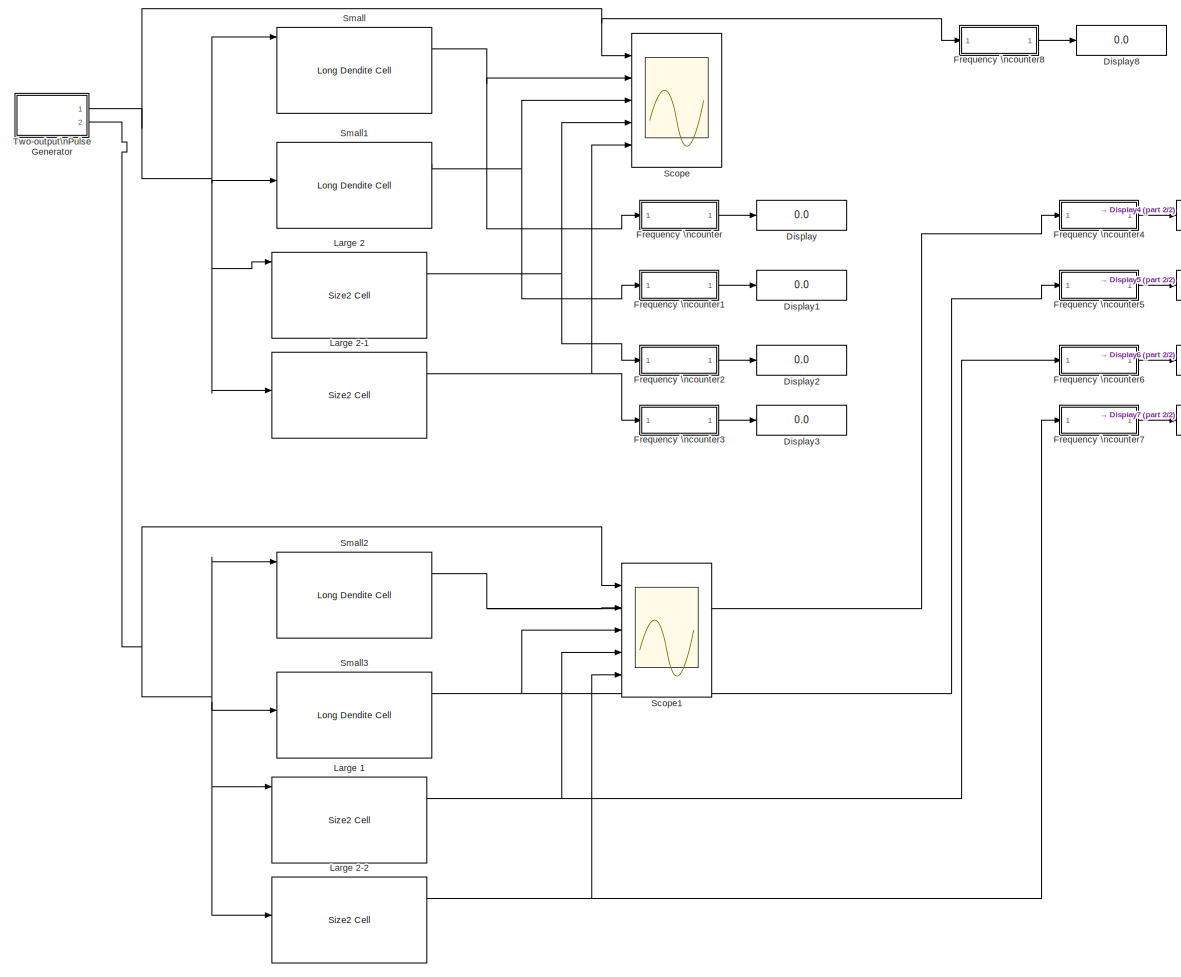
[diagram: root canvas - part 1/2, most of the canvas]
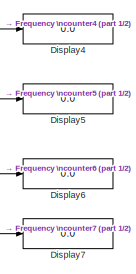
[diagram: root canvas - part 2/2, middle right region]
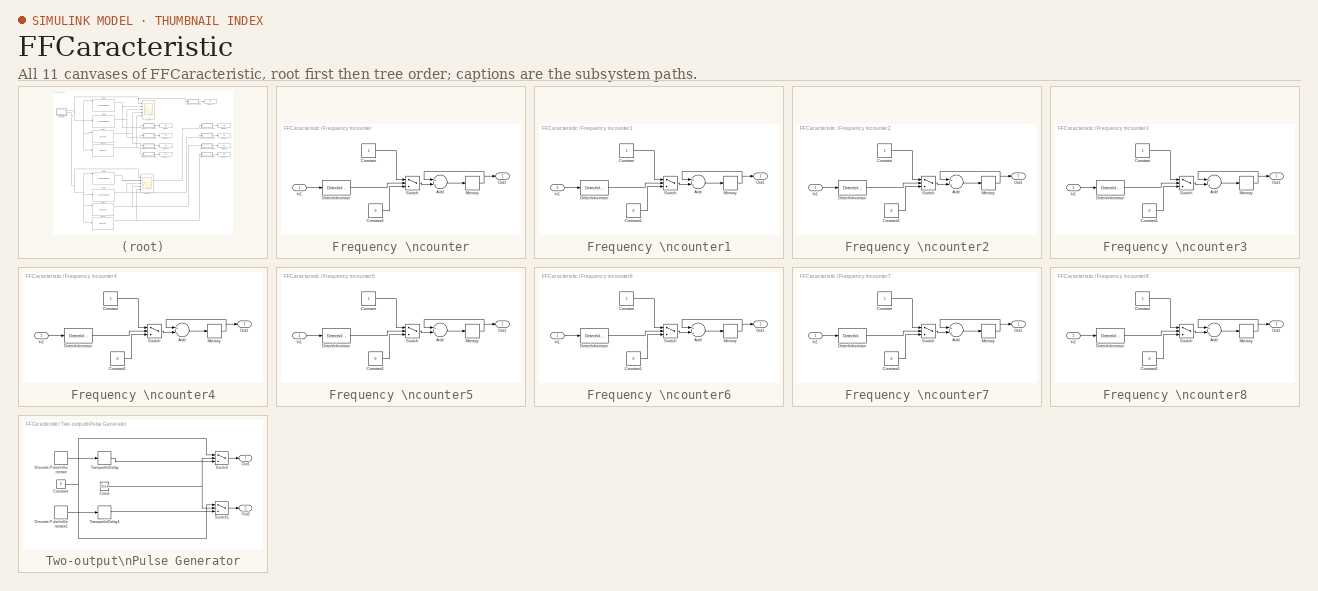
[diagram: thumbnail index - all 11 canvases of the model, root first then tree order]
MODEL FFCaracteristic
KIND model
BLOCK [Display] Display
  Decimation = 1
  Lockdown = off
  Ports = [1]
  SID = 1
BLOCK [Display] Display1
  Decimation = 1
  Lockdown = off
  Ports = [1]
  SID = 2
BLOCK [Display] Display2
  Decimation = 1
  Lockdown = off
  Ports = [1]
  SID = 3
BLOCK [Display] Display3
  Decimation = 1
  Lockdown = off
  Ports = [1]
  SID = 4
BLOCK [Display] Display4
  Decimation = 1
  Lockdown = off
  Ports = [1]
  SID = 309
BLOCK [Display] Display5
  Decimation = 1
  Lockdown = off
  Ports = [1]
  SID = 310
BLOCK [Display] Display6
  Decimation = 1
  Lockdown = off
  Ports = [1]
  SID = 311
BLOCK [Display] Display7
  Decimation = 1
  Lockdown = off
  Ports = [1]
  SID = 312
BLOCK [Display] Display8
  Decimation = 1
  Lockdown = off
  Ports = [1]
  SID = 354
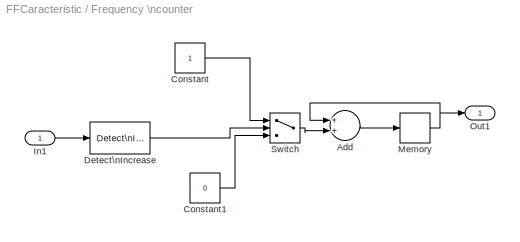
BLOCK [SubSystem] Frequency \ncounter
  FunctionWithSeparateData = off
  MaskHideContents = off
  MinAlgLoopOccurrences = off
  Opaque = off
  Ports = [1, 1]
  PropExecContextOutsideSubsystem = off
  RTWSystemCode = Auto
  RequestExecContextInheritance = off
  SID = 5
BLOCK [Sum] Frequency \ncounter/Add
  InputSameDT = off
  OutDataType = fixdt(1, 16)
  OutDataTypeMode = Inherit via internal rule
  OutDataTypeStr = Inherit: Inherit via internal rule
  OutScaling = 2^-10
  Ports = [2, 1]
  SID = 7
  SaturateOnIntegerOverflow = off
BLOCK [Constant] Frequency \ncounter/Constant
  OutDataType = fixdt(1, 16)
  OutScaling = 2^0
  SID = 8
BLOCK [Constant] Frequency \ncounter/Constant1
  OutDataType = fixdt(1, 16)
  OutScaling = 2^0
  SID = 9
  Value = 0
BLOCK [Reference] Frequency \ncounter/Detect\nIncrease  REF=simulink/Logic and Bit\nOperations/Detect\nIncrease
  FunctionWithSeparateData = off
  Ports = [1, 1]
  RTWMemSecDataConstants = Inherit from model
  RTWMemSecDataInternal = Inherit from model
  RTWMemSecDataParameters = Inherit from model
  RTWMemSecFuncExecute = Inherit from model
  RTWMemSecFuncInitTerm = Inherit from model
  SID = 10
  ShowPortLabels = FromPortIcon
  SourceBlock = simulink/Logic and Bit\nOperations/Detect\nIncrease
  SourceType = Detect Increase
  SystemSampleTime = -1
  vinit = 0.0
BLOCK [Inport] Frequency \ncounter/In1
  IconDisplay = Port number
  SID = 6
BLOCK [Memory] Frequency \ncounter/Memory
  SID = 11
BLOCK [Outport] Frequency \ncounter/Out1
  IconDisplay = Port number
  SID = 13
BLOCK [Switch] Frequency \ncounter/Switch
  Criteria = u2 > Threshold
  InputSameDT = off
  OutDataType = fixdt(1, 16)
  OutScaling = 2^0
  SID = 12
  SaturateOnIntegerOverflow = off
BLOCK [SubSystem] Frequency \ncounter1
  FunctionWithSeparateData = off
  MaskHideContents = off
  MinAlgLoopOccurrences = off
  Opaque = off
  Ports = [1, 1]
  PropExecContextOutsideSubsystem = off
  RTWSystemCode = Auto
  RequestExecContextInheritance = off
  SID = 14
BLOCK [Sum] Frequency \ncounter1/Add
  InputSameDT = off
  OutDataType = fixdt(1, 16)
  OutDataTypeMode = Inherit via internal rule
  OutDataTypeStr = Inherit: Inherit via internal rule
  OutScaling = 2^-10
  Ports = [2, 1]
  SID = 16
  SaturateOnIntegerOverflow = off
BLOCK [Constant] Frequency \ncounter1/Constant
  OutDataType = fixdt(1, 16)
  OutScaling = 2^0
  SID = 17
BLOCK [Constant] Frequency \ncounter1/Constant1
  OutDataType = fixdt(1, 16)
  OutScaling = 2^0
  SID = 18
  Value = 0
BLOCK [Reference] Frequency \ncounter1/Detect\nIncrease  REF=simulink/Logic and Bit\nOperations/Detect\nIncrease
  FunctionWithSeparateData = off
  Ports = [1, 1]
  RTWMemSecDataConstants = Inherit from model
  RTWMemSecDataInternal = Inherit from model
  RTWMemSecDataParameters = Inherit from model
  RTWMemSecFuncExecute = Inherit from model
  RTWMemSecFuncInitTerm = Inherit from model
  SID = 19
  ShowPortLabels = FromPortIcon
  SourceBlock = simulink/Logic and Bit\nOperations/Detect\nIncrease
  SourceType = Detect Increase
  SystemSampleTime = -1
  vinit = 0.0
BLOCK [Inport] Frequency \ncounter1/In1
  IconDisplay = Port number
  SID = 15
BLOCK [Memory] Frequency \ncounter1/Memory
  SID = 20
BLOCK [Outport] Frequency \ncounter1/Out1
  IconDisplay = Port number
  SID = 22
BLOCK [Switch] Frequency \ncounter1/Switch
  Criteria = u2 > Threshold
  InputSameDT = off
  OutDataType = fixdt(1, 16)
  OutScaling = 2^0
  SID = 21
  SaturateOnIntegerOverflow = off
BLOCK [SubSystem] Frequency \ncounter2
  FunctionWithSeparateData = off
  MaskHideContents = off
  MinAlgLoopOccurrences = off
  Opaque = off
  Ports = [1, 1]
  PropExecContextOutsideSubsystem = off
  RTWSystemCode = Auto
  RequestExecContextInheritance = off
  SID = 23
BLOCK [Sum] Frequency \ncounter2/Add
  InputSameDT = off
  OutDataType = fixdt(1, 16)
  OutDataTypeMode = Inherit via internal rule
  OutDataTypeStr = Inherit: Inherit via internal rule
  OutScaling = 2^-10
  Ports = [2, 1]
  SID = 25
  SaturateOnIntegerOverflow = off
BLOCK [Constant] Frequency \ncounter2/Constant
  OutDataType = fixdt(1, 16)
  OutScaling = 2^0
  SID = 26
BLOCK [Constant] Frequency \ncounter2/Constant1
  OutDataType = fixdt(1, 16)
  OutScaling = 2^0
  SID = 27
  Value = 0
BLOCK [Reference] Frequency \ncounter2/Detect\nIncrease  REF=simulink/Logic and Bit\nOperations/Detect\nIncrease
  FunctionWithSeparateData = off
  Ports = [1, 1]
  RTWMemSecDataConstants = Inherit from model
  RTWMemSecDataInternal = Inherit from model
  RTWMemSecDataParameters = Inherit from model
  RTWMemSecFuncExecute = Inherit from model
  RTWMemSecFuncInitTerm = Inherit from model
  SID = 28
  ShowPortLabels = FromPortIcon
  SourceBlock = simulink/Logic and Bit\nOperations/Detect\nIncrease
  SourceType = Detect Increase
  SystemSampleTime = -1
  vinit = 0.0
BLOCK [Inport] Frequency \ncounter2/In1
  IconDisplay = Port number
  SID = 24
BLOCK [Memory] Frequency \ncounter2/Memory
  SID = 29
BLOCK [Outport] Frequency \ncounter2/Out1
  IconDisplay = Port number
  SID = 31
BLOCK [Switch] Frequency \ncounter2/Switch
  Criteria = u2 > Threshold
  InputSameDT = off
  OutDataType = fixdt(1, 16)
  OutScaling = 2^0
  SID = 30
  SaturateOnIntegerOverflow = off
BLOCK [SubSystem] Frequency \ncounter3
  FunctionWithSeparateData = off
  MaskHideContents = off
  MinAlgLoopOccurrences = off
  Opaque = off
  Ports = [1, 1]
  PropExecContextOutsideSubsystem = off
  RTWSystemCode = Auto
  RequestExecContextInheritance = off
  SID = 32
BLOCK [Sum] Frequency \ncounter3/Add
  InputSameDT = off
  OutDataType = fixdt(1, 16)
  OutDataTypeMode = Inherit via internal rule
  OutDataTypeStr = Inherit: Inherit via internal rule
  OutScaling = 2^-10
  Ports = [2, 1]
  SID = 34
  SaturateOnIntegerOverflow = off
BLOCK [Constant] Frequency \ncounter3/Constant
  OutDataType = fixdt(1, 16)
  OutScaling = 2^0
  SID = 35
BLOCK [Constant] Frequency \ncounter3/Constant1
  OutDataType = fixdt(1, 16)
  OutScaling = 2^0
  SID = 36
  Value = 0
BLOCK [Reference] Frequency \ncounter3/Detect\nIncrease  REF=simulink/Logic and Bit\nOperations/Detect\nIncrease
  FunctionWithSeparateData = off
  Ports = [1, 1]
  RTWMemSecDataConstants = Inherit from model
  RTWMemSecDataInternal = Inherit from model
  RTWMemSecDataParameters = Inherit from model
  RTWMemSecFuncExecute = Inherit from model
  RTWMemSecFuncInitTerm = Inherit from model
  SID = 37
  ShowPortLabels = FromPortIcon
  SourceBlock = simulink/Logic and Bit\nOperations/Detect\nIncrease
  SourceType = Detect Increase
  SystemSampleTime = -1
  vinit = 0.0
BLOCK [Inport] Frequency \ncounter3/In1
  IconDisplay = Port number
  SID = 33
BLOCK [Memory] Frequency \ncounter3/Memory
  SID = 38
BLOCK [Outport] Frequency \ncounter3/Out1
  IconDisplay = Port number
  SID = 40
BLOCK [Switch] Frequency \ncounter3/Switch
  Criteria = u2 > Threshold
  InputSameDT = off
  OutDataType = fixdt(1, 16)
  OutScaling = 2^0
  SID = 39
  SaturateOnIntegerOverflow = off
BLOCK [SubSystem] Frequency \ncounter4
  FunctionWithSeparateData = off
  MaskHideContents = off
  MinAlgLoopOccurrences = off
  Opaque = off
  Ports = [1, 1]
  PropExecContextOutsideSubsystem = off
  RTWSystemCode = Auto
  RequestExecContextInheritance = off
  SID = 313
BLOCK [Sum] Frequency \ncounter4/Add
  InputSameDT = off
  OutDataType = fixdt(1, 16)
  OutDataTypeMode = Inherit via internal rule
  OutDataTypeStr = Inherit: Inherit via internal rule
  OutScaling = 2^-10
  Ports = [2, 1]
  SID = 315
  SaturateOnIntegerOverflow = off
BLOCK [Constant] Frequency \ncounter4/Constant
  OutDataType = fixdt(1, 16)
  OutScaling = 2^0
  SID = 316
BLOCK [Constant] Frequency \ncounter4/Constant1
  OutDataType = fixdt(1, 16)
  OutScaling = 2^0
  SID = 317
  Value = 0
BLOCK [Reference] Frequency \ncounter4/Detect\nIncrease  REF=simulink/Logic and Bit\nOperations/Detect\nIncrease
  FunctionWithSeparateData = off
  Ports = [1, 1]
  RTWMemSecDataConstants = Inherit from model
  RTWMemSecDataInternal = Inherit from model
  RTWMemSecDataParameters = Inherit from model
  RTWMemSecFuncExecute = Inherit from model
  RTWMemSecFuncInitTerm = Inherit from model
  SID = 318
  ShowPortLabels = FromPortIcon
  SourceBlock = simulink/Logic and Bit\nOperations/Detect\nIncrease
  SourceType = Detect Increase
  SystemSampleTime = -1
  vinit = 0.0
BLOCK [Inport] Frequency \ncounter4/In1
  IconDisplay = Port number
  SID = 314
BLOCK [Memory] Frequency \ncounter4/Memory
  SID = 319
BLOCK [Outport] Frequency \ncounter4/Out1
  IconDisplay = Port number
  SID = 321
BLOCK [Switch] Frequency \ncounter4/Switch
  Criteria = u2 > Threshold
  InputSameDT = off
  OutDataType = fixdt(1, 16)
  OutScaling = 2^0
  SID = 320
  SaturateOnIntegerOverflow = off
BLOCK [SubSystem] Frequency \ncounter5
  FunctionWithSeparateData = off
  MaskHideContents = off
  MinAlgLoopOccurrences = off
  Opaque = off
  Ports = [1, 1]
  PropExecContextOutsideSubsystem = off
  RTWSystemCode = Auto
  RequestExecContextInheritance = off
  SID = 322
BLOCK [Sum] Frequency \ncounter5/Add
  InputSameDT = off
  OutDataType = fixdt(1, 16)
  OutDataTypeMode = Inherit via internal rule
  OutDataTypeStr = Inherit: Inherit via internal rule
  OutScaling = 2^-10
  Ports = [2, 1]
  SID = 324
  SaturateOnIntegerOverflow = off
BLOCK [Constant] Frequency \ncounter5/Constant
  OutDataType = fixdt(1, 16)
  OutScaling = 2^0
  SID = 325
BLOCK [Constant] Frequency \ncounter5/Constant1
  OutDataType = fixdt(1, 16)
  OutScaling = 2^0
  SID = 326
  Value = 0
BLOCK [Reference] Frequency \ncounter5/Detect\nIncrease  REF=simulink/Logic and Bit\nOperations/Detect\nIncrease
  FunctionWithSeparateData = off
  Ports = [1, 1]
  RTWMemSecDataConstants = Inherit from model
  RTWMemSecDataInternal = Inherit from model
  RTWMemSecDataParameters = Inherit from model
  RTWMemSecFuncExecute = Inherit from model
  RTWMemSecFuncInitTerm = Inherit from model
  SID = 327
  ShowPortLabels = FromPortIcon
  SourceBlock = simulink/Logic and Bit\nOperations/Detect\nIncrease
  SourceType = Detect Increase
  SystemSampleTime = -1
  vinit = 0.0
BLOCK [Inport] Frequency \ncounter5/In1
  IconDisplay = Port number
  SID = 323
BLOCK [Memory] Frequency \ncounter5/Memory
  SID = 328
BLOCK [Outport] Frequency \ncounter5/Out1
  IconDisplay = Port number
  SID = 330
BLOCK [Switch] Frequency \ncounter5/Switch
  Criteria = u2 > Threshold
  InputSameDT = off
  OutDataType = fixdt(1, 16)
  OutScaling = 2^0
  SID = 329
  SaturateOnIntegerOverflow = off
BLOCK [SubSystem] Frequency \ncounter6
  FunctionWithSeparateData = off
  MaskHideContents = off
  MinAlgLoopOccurrences = off
  Opaque = off
  Ports = [1, 1]
  PropExecContextOutsideSubsystem = off
  RTWSystemCode = Auto
  RequestExecContextInheritance = off
  SID = 331
BLOCK [Sum] Frequency \ncounter6/Add
  InputSameDT = off
  OutDataType = fixdt(1, 16)
  OutDataTypeMode = Inherit via internal rule
  OutDataTypeStr = Inherit: Inherit via internal rule
  OutScaling = 2^-10
  Ports = [2, 1]
  SID = 333
  SaturateOnIntegerOverflow = off
BLOCK [Constant] Frequency \ncounter6/Constant
  OutDataType = fixdt(1, 16)
  OutScaling = 2^0
  SID = 334
BLOCK [Constant] Frequency \ncounter6/Constant1
  OutDataType = fixdt(1, 16)
  OutScaling = 2^0
  SID = 335
  Value = 0
BLOCK [Reference] Frequency \ncounter6/Detect\nIncrease  REF=simulink/Logic and Bit\nOperations/Detect\nIncrease
  FunctionWithSeparateData = off
  Ports = [1, 1]
  RTWMemSecDataConstants = Inherit from model
  RTWMemSecDataInternal = Inherit from model
  RTWMemSecDataParameters = Inherit from model
  RTWMemSecFuncExecute = Inherit from model
  RTWMemSecFuncInitTerm = Inherit from model
  SID = 336
  ShowPortLabels = FromPortIcon
  SourceBlock = simulink/Logic and Bit\nOperations/Detect\nIncrease
  SourceType = Detect Increase
  SystemSampleTime = -1
  vinit = 0.0
BLOCK [Inport] Frequency \ncounter6/In1
  IconDisplay = Port number
  SID = 332
BLOCK [Memory] Frequency \ncounter6/Memory
  SID = 337
BLOCK [Outport] Frequency \ncounter6/Out1
  IconDisplay = Port number
  SID = 339
BLOCK [Switch] Frequency \ncounter6/Switch
  Criteria = u2 > Threshold
  InputSameDT = off
  OutDataType = fixdt(1, 16)
  OutScaling = 2^0
  SID = 338
  SaturateOnIntegerOverflow = off
BLOCK [SubSystem] Frequency \ncounter7
  FunctionWithSeparateData = off
  MaskHideContents = off
  MinAlgLoopOccurrences = off
  Opaque = off
  Ports = [1, 1]
  PropExecContextOutsideSubsystem = off
  RTWSystemCode = Auto
  RequestExecContextInheritance = off
  SID = 340
BLOCK [Sum] Frequency \ncounter7/Add
  InputSameDT = off
  OutDataType = fixdt(1, 16)
  OutDataTypeMode = Inherit via internal rule
  OutDataTypeStr = Inherit: Inherit via internal rule
  OutScaling = 2^-10
  Ports = [2, 1]
  SID = 342
  SaturateOnIntegerOverflow = off
BLOCK [Constant] Frequency \ncounter7/Constant
  OutDataType = fixdt(1, 16)
  OutScaling = 2^0
  SID = 343
BLOCK [Constant] Frequency \ncounter7/Constant1
  OutDataType = fixdt(1, 16)
  OutScaling = 2^0
  SID = 344
  Value = 0
BLOCK [Reference] Frequency \ncounter7/Detect\nIncrease  REF=simulink/Logic and Bit\nOperations/Detect\nIncrease
  FunctionWithSeparateData = off
  Ports = [1, 1]
  RTWMemSecDataConstants = Inherit from model
  RTWMemSecDataInternal = Inherit from model
  RTWMemSecDataParameters = Inherit from model
  RTWMemSecFuncExecute = Inherit from model
  RTWMemSecFuncInitTerm = Inherit from model
  SID = 345
  ShowPortLabels = FromPortIcon
  SourceBlock = simulink/Logic and Bit\nOperations/Detect\nIncrease
  SourceType = Detect Increase
  SystemSampleTime = -1
  vinit = 0.0
BLOCK [Inport] Frequency \ncounter7/In1
  IconDisplay = Port number
  SID = 341
BLOCK [Memory] Frequency \ncounter7/Memory
  SID = 346
BLOCK [Outport] Frequency \ncounter7/Out1
  IconDisplay = Port number
  SID = 348
BLOCK [Switch] Frequency \ncounter7/Switch
  Criteria = u2 > Threshold
  InputSameDT = off
  OutDataType = fixdt(1, 16)
  OutScaling = 2^0
  SID = 347
  SaturateOnIntegerOverflow = off
BLOCK [SubSystem] Frequency \ncounter8
  FunctionWithSeparateData = off
  MaskHideContents = off
  MinAlgLoopOccurrences = off
  Opaque = off
  Ports = [1, 1]
  PropExecContextOutsideSubsystem = off
  RTWSystemCode = Auto
  RequestExecContextInheritance = off
  SID = 355
BLOCK [Sum] Frequency \ncounter8/Add
  InputSameDT = off
  OutDataType = fixdt(1, 16)
  OutDataTypeMode = Inherit via internal rule
  OutDataTypeStr = Inherit: Inherit via internal rule
  OutScaling = 2^-10
  Ports = [2, 1]
  SID = 357
  SaturateOnIntegerOverflow = off
BLOCK [Constant] Frequency \ncounter8/Constant
  OutDataType = fixdt(1, 16)
  OutScaling = 2^0
  SID = 358
BLOCK [Constant] Frequency \ncounter8/Constant1
  OutDataType = fixdt(1, 16)
  OutScaling = 2^0
  SID = 359
  Value = 0
BLOCK [Reference] Frequency \ncounter8/Detect\nIncrease  REF=simulink/Logic and Bit\nOperations/Detect\nIncrease
  FunctionWithSeparateData = off
  Ports = [1, 1]
  RTWMemSecDataConstants = Inherit from model
  RTWMemSecDataInternal = Inherit from model
  RTWMemSecDataParameters = Inherit from model
  RTWMemSecFuncExecute = Inherit from model
  RTWMemSecFuncInitTerm = Inherit from model
  SID = 360
  ShowPortLabels = FromPortIcon
  SourceBlock = simulink/Logic and Bit\nOperations/Detect\nIncrease
  SourceType = Detect Increase
  SystemSampleTime = -1
  vinit = 0.0
BLOCK [Inport] Frequency \ncounter8/In1
  IconDisplay = Port number
  SID = 356
BLOCK [Memory] Frequency \ncounter8/Memory
  SID = 361
BLOCK [Outport] Frequency \ncounter8/Out1
  IconDisplay = Port number
  SID = 363
BLOCK [Switch] Frequency \ncounter8/Switch
  Criteria = u2 > Threshold
  InputSameDT = off
  OutDataType = fixdt(1, 16)
  OutScaling = 2^0
  SID = 362
  SaturateOnIntegerOverflow = off
BLOCK [Reference] Large 1  REF=NeuroModelerLibrary/Sized Cells/Size2 Cell
  FunctionWithSeparateData = off
  Ports = [8, 3]
  RTWMemSecDataConstants = Inherit from model
  RTWMemSecDataInternal = Inherit from model
  RTWMemSecDataParameters = Inherit from model
  RTWMemSecFuncExecute = Inherit from model
  RTWMemSecFuncInitTerm = Inherit from model
  SID = 349
  ShowPortLabels = FromPortIcon
  SourceBlock = NeuroModelerLibrary/Sized Cells/Size2 Cell
  SourceType = SubSystem
  SystemSampleTime = -1
BLOCK [Reference] Large 2  REF=NeuroModelerLibrary/Sized Cells/Size2 Cell
  FunctionWithSeparateData = off
  Ports = [8, 3]
  RTWMemSecDataConstants = Inherit from model
  RTWMemSecDataInternal = Inherit from model
  RTWMemSecDataParameters = Inherit from model
  RTWMemSecFuncExecute = Inherit from model
  RTWMemSecFuncInitTerm = Inherit from model
  SID = 306
  ShowPortLabels = FromPortIcon
  SourceBlock = NeuroModelerLibrary/Sized Cells/Size2 Cell
  SourceType = SubSystem
  SystemSampleTime = -1
BLOCK [Reference] Large 2-1  REF=NeuroModelerLibrary/Sized Cells/Size2 Cell
  FunctionWithSeparateData = off
  Ports = [8, 3]
  RTWMemSecDataConstants = Inherit from model
  RTWMemSecDataInternal = Inherit from model
  RTWMemSecDataParameters = Inherit from model
  RTWMemSecFuncExecute = Inherit from model
  RTWMemSecFuncInitTerm = Inherit from model
  SID = 308
  ShowPortLabels = FromPortIcon
  SourceBlock = NeuroModelerLibrary/Sized Cells/Size2 Cell
  SourceType = SubSystem
  SystemSampleTime = -1
BLOCK [Reference] Large 2-2  REF=NeuroModelerLibrary/Sized Cells/Size2 Cell
  FunctionWithSeparateData = off
  Ports = [8, 3]
  RTWMemSecDataConstants = Inherit from model
  RTWMemSecDataInternal = Inherit from model
  RTWMemSecDataParameters = Inherit from model
  RTWMemSecFuncExecute = Inherit from model
  RTWMemSecFuncInitTerm = Inherit from model
  SID = 350
  ShowPortLabels = FromPortIcon
  SourceBlock = NeuroModelerLibrary/Sized Cells/Size2 Cell
  SourceType = SubSystem
  SystemSampleTime = -1
BLOCK [Scope] Scope
  DataFormat = StructureWithTime
  Floating = off
  MaxDataPoints = 50000
  NumInputPorts = 5
  Ports = [5]
  SID = 141
  SampleTime = 0
  YMax = 1~1~1~1~1
  YMin = 0~-1~-1~0~0
BLOCK [Scope] Scope1
  DataFormat = StructureWithTime
  Floating = off
  MaxDataPoints = 50000
  NumInputPorts = 5
  Ports = [5]
  SID = 351
  SampleTime = 0
  SaveName = ScopeData1
  YMax = 1.1~1.1~1.1~1.1~1.1
  YMin = -0.1~-0.1~-0.1~-0.1~-0.1
BLOCK [Reference] Small  REF=NeuroModelerLibrary/Dendrites Cells/Long Dendite Cell
  FunctionWithSeparateData = off
  Ports = [8, 3]
  RTWMemSecDataConstants = Inherit from model
  RTWMemSecDataInternal = Inherit from model
  RTWMemSecDataParameters = Inherit from model
  RTWMemSecFuncExecute = Inherit from model
  RTWMemSecFuncInitTerm = Inherit from model
  SID = 305
  ShowPortLabels = FromPortIcon
  SourceBlock = NeuroModelerLibrary/Dendrites Cells/Long Dendite Cell
  SourceType = SubSystem
  SystemSampleTime = -1
BLOCK [Reference] Small1  REF=NeuroModelerLibrary/Dendrites Cells/Long Dendite Cell
  FunctionWithSeparateData = off
  Ports = [8, 3]
  RTWMemSecDataConstants = Inherit from model
  RTWMemSecDataInternal = Inherit from model
  RTWMemSecDataParameters = Inherit from model
  RTWMemSecFuncExecute = Inherit from model
  RTWMemSecFuncInitTerm = Inherit from model
  SID = 307
  ShowPortLabels = FromPortIcon
  SourceBlock = NeuroModelerLibrary/Dendrites Cells/Long Dendite Cell
  SourceType = SubSystem
  SystemSampleTime = -1
BLOCK [Reference] Small2  REF=NeuroModelerLibrary/Dendrites Cells/Long Dendite Cell
  FunctionWithSeparateData = off
  Ports = [8, 3]
  RTWMemSecDataConstants = Inherit from model
  RTWMemSecDataInternal = Inherit from model
  RTWMemSecDataParameters = Inherit from model
  RTWMemSecFuncExecute = Inherit from model
  RTWMemSecFuncInitTerm = Inherit from model
  SID = 352
  ShowPortLabels = FromPortIcon
  SourceBlock = NeuroModelerLibrary/Dendrites Cells/Long Dendite Cell
  SourceType = SubSystem
  SystemSampleTime = -1
BLOCK [Reference] Small3  REF=NeuroModelerLibrary/Dendrites Cells/Long Dendite Cell
  FunctionWithSeparateData = off
  Ports = [8, 3]
  RTWMemSecDataConstants = Inherit from model
  RTWMemSecDataInternal = Inherit from model
  RTWMemSecDataParameters = Inherit from model
  RTWMemSecFuncExecute = Inherit from model
  RTWMemSecFuncInitTerm = Inherit from model
  SID = 353
  ShowPortLabels = FromPortIcon
  SourceBlock = NeuroModelerLibrary/Dendrites Cells/Long Dendite Cell
  SourceType = SubSystem
  SystemSampleTime = -1
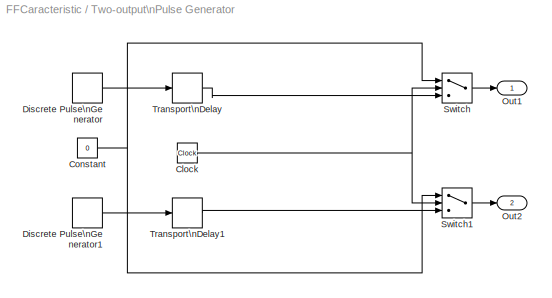
BLOCK [SubSystem] Two-output\nPulse Generator
  FunctionWithSeparateData = off
  MaskCallbackString = ||||||||
  MaskEnableString = on,on,on,on,on,on,on,on,on
  MaskHideContents = off
  MaskIconFrame = on
  MaskIconOpaque = on
  MaskIconRotate = none
  MaskIconUnits = autoscale
  MaskPortRotate = default
  MaskPromptString = Amplitude|Out1: Period (number of samples)|Out2: Period (number of samples)|Pulse Width (number of samples)|Sample Time|Out1 On (seconds)|Out1 Off (seconds)|Out2 On (seconds)|Out2 Off (seconds)
  MaskStyleString = edit,edit,edit,edit,edit,edit,edit,edit,edit
  MaskToolTipString = on,on,on,on,on,on,on,on,on
  MaskTunableValueString = on,on,on,on,on,on,on,on,on
  MaskValueString = 1|20|100|1|0.001|0.00|1|0.0|1
  MaskVariables = A=@1;P1=@2;P2=@3;PW=@4;ST=@5;OOn1=@6;OOff1=@7;OOn2=@8;OOff2=@9;
  MaskVisibilityString = on,on,on,on,on,on,on,on,on
  MinAlgLoopOccurrences = off
  Opaque = off
  Ports = [0, 2]
  PropExecContextOutsideSubsystem = off
  RTWSystemCode = Auto
  RequestExecContextInheritance = off
  SID = 294
BLOCK [Clock] Two-output\nPulse Generator/Clock
  Decimation = 10
  SID = 295
BLOCK [Constant] Two-output\nPulse Generator/Constant
  SID = 296
  Value = 0
BLOCK [DiscretePulseGenerator] Two-output\nPulse Generator/Discrete Pulse\nGenerator
  Amplitude = A
  Period = P1
  PhaseDelay = 0
  Ports = [0, 1]
  PulseWidth = PW
  SID = 297
  SampleTime = ST
BLOCK [DiscretePulseGenerator] Two-output\nPulse Generator/Discrete Pulse\nGenerator1
  Amplitude = A
  Period = P2
  PhaseDelay = 0
  Ports = [0, 1]
  PulseWidth = PW
  SID = 298
  SampleTime = ST
BLOCK [Outport] Two-output\nPulse Generator/Out1
  IconDisplay = Port number
  InitialOutput = 0
  SID = 303
BLOCK [Outport] Two-output\nPulse Generator/Out2
  IconDisplay = Port number
  InitialOutput = 0
  Port = 2
  SID = 304
BLOCK [Switch] Two-output\nPulse Generator/Switch
  SID = 299
  Threshold = OOff1
BLOCK [Switch] Two-output\nPulse Generator/Switch1
  SID = 300
  Threshold = OOff2
BLOCK [TransportDelay] Two-output\nPulse Generator/Transport\nDelay
  DelayTime = OOn1
  SID = 301
BLOCK [TransportDelay] Two-output\nPulse Generator/Transport\nDelay1
  DelayTime = OOn2
  SID = 302
LINE Frequency \ncounter/Add:1 -> Frequency \ncounter/Memory:1
LINE Frequency \ncounter/Constant1:1 -> Frequency \ncounter/Switch:3
LINE Frequency \ncounter/Constant:1 -> Frequency \ncounter/Switch:1
LINE Frequency \ncounter/Detect\nIncrease:1 -> Frequency \ncounter/Switch:2
LINE Frequency \ncounter/In1:1 -> Frequency \ncounter/Detect\nIncrease:1
NET Frequency \ncounter/Memory:1 -> Frequency \ncounter/Add:1, Frequency \ncounter/Out1:1
LINE Frequency \ncounter/Switch:1 -> Frequency \ncounter/Add:2
LINE Frequency \ncounter1/Add:1 -> Frequency \ncounter1/Memory:1
LINE Frequency \ncounter1/Constant1:1 -> Frequency \ncounter1/Switch:3
LINE Frequency \ncounter1/Constant:1 -> Frequency \ncounter1/Switch:1
LINE Frequency \ncounter1/Detect\nIncrease:1 -> Frequency \ncounter1/Switch:2
LINE Frequency \ncounter1/In1:1 -> Frequency \ncounter1/Detect\nIncrease:1
NET Frequency \ncounter1/Memory:1 -> Frequency \ncounter1/Add:1, Frequency \ncounter1/Out1:1
LINE Frequency \ncounter1/Switch:1 -> Frequency \ncounter1/Add:2
LINE Frequency \ncounter1:1 -> Display1:1
LINE Frequency \ncounter2/Add:1 -> Frequency \ncounter2/Memory:1
LINE Frequency \ncounter2/Constant1:1 -> Frequency \ncounter2/Switch:3
LINE Frequency \ncounter2/Constant:1 -> Frequency \ncounter2/Switch:1
LINE Frequency \ncounter2/Detect\nIncrease:1 -> Frequency \ncounter2/Switch:2
LINE Frequency \ncounter2/In1:1 -> Frequency \ncounter2/Detect\nIncrease:1
NET Frequency \ncounter2/Memory:1 -> Frequency \ncounter2/Add:1, Frequency \ncounter2/Out1:1
LINE Frequency \ncounter2/Switch:1 -> Frequency \ncounter2/Add:2
LINE Frequency \ncounter2:1 -> Display2:1
LINE Frequency \ncounter3/Add:1 -> Frequency \ncounter3/Memory:1
LINE Frequency \ncounter3/Constant1:1 -> Frequency \ncounter3/Switch:3
LINE Frequency \ncounter3/Constant:1 -> Frequency \ncounter3/Switch:1
LINE Frequency \ncounter3/Detect\nIncrease:1 -> Frequency \ncounter3/Switch:2
LINE Frequency \ncounter3/In1:1 -> Frequency \ncounter3/Detect\nIncrease:1
NET Frequency \ncounter3/Memory:1 -> Frequency \ncounter3/Add:1, Frequency \ncounter3/Out1:1
LINE Frequency \ncounter3/Switch:1 -> Frequency \ncounter3/Add:2
LINE Frequency \ncounter3:1 -> Display3:1
LINE Frequency \ncounter4/Add:1 -> Frequency \ncounter4/Memory:1
LINE Frequency \ncounter4/Constant1:1 -> Frequency \ncounter4/Switch:3
LINE Frequency \ncounter4/Constant:1 -> Frequency \ncounter4/Switch:1
LINE Frequency \ncounter4/Detect\nIncrease:1 -> Frequency \ncounter4/Switch:2
LINE Frequency \ncounter4/In1:1 -> Frequency \ncounter4/Detect\nIncrease:1
NET Frequency \ncounter4/Memory:1 -> Frequency \ncounter4/Add:1, Frequency \ncounter4/Out1:1
LINE Frequency \ncounter4/Switch:1 -> Frequency \ncounter4/Add:2
LINE Frequency \ncounter4:1 -> Display4:1
LINE Frequency \ncounter5/Add:1 -> Frequency \ncounter5/Memory:1
LINE Frequency \ncounter5/Constant1:1 -> Frequency \ncounter5/Switch:3
LINE Frequency \ncounter5/Constant:1 -> Frequency \ncounter5/Switch:1
LINE Frequency \ncounter5/Detect\nIncrease:1 -> Frequency \ncounter5/Switch:2
LINE Frequency \ncounter5/In1:1 -> Frequency \ncounter5/Detect\nIncrease:1
NET Frequency \ncounter5/Memory:1 -> Frequency \ncounter5/Add:1, Frequency \ncounter5/Out1:1
LINE Frequency \ncounter5/Switch:1 -> Frequency \ncounter5/Add:2
LINE Frequency \ncounter5:1 -> Display5:1
LINE Frequency \ncounter6/Add:1 -> Frequency \ncounter6/Memory:1
LINE Frequency \ncounter6/Constant1:1 -> Frequency \ncounter6/Switch:3
LINE Frequency \ncounter6/Constant:1 -> Frequency \ncounter6/Switch:1
LINE Frequency \ncounter6/Detect\nIncrease:1 -> Frequency \ncounter6/Switch:2
LINE Frequency \ncounter6/In1:1 -> Frequency \ncounter6/Detect\nIncrease:1
NET Frequency \ncounter6/Memory:1 -> Frequency \ncounter6/Add:1, Frequency \ncounter6/Out1:1
LINE Frequency \ncounter6/Switch:1 -> Frequency \ncounter6/Add:2
LINE Frequency \ncounter6:1 -> Display6:1
LINE Frequency \ncounter7/Add:1 -> Frequency \ncounter7/Memory:1
LINE Frequency \ncounter7/Constant1:1 -> Frequency \ncounter7/Switch:3
LINE Frequency \ncounter7/Constant:1 -> Frequency \ncounter7/Switch:1
LINE Frequency \ncounter7/Detect\nIncrease:1 -> Frequency \ncounter7/Switch:2
LINE Frequency \ncounter7/In1:1 -> Frequency \ncounter7/Detect\nIncrease:1
NET Frequency \ncounter7/Memory:1 -> Frequency \ncounter7/Add:1, Frequency \ncounter7/Out1:1
LINE Frequency \ncounter7/Switch:1 -> Frequency \ncounter7/Add:2
LINE Frequency \ncounter7:1 -> Display7:1
LINE Frequency \ncounter8/Add:1 -> Frequency \ncounter8/Memory:1
LINE Frequency \ncounter8/Constant1:1 -> Frequency \ncounter8/Switch:3
LINE Frequency \ncounter8/Constant:1 -> Frequency \ncounter8/Switch:1
LINE Frequency \ncounter8/Detect\nIncrease:1 -> Frequency \ncounter8/Switch:2
LINE Frequency \ncounter8/In1:1 -> Frequency \ncounter8/Detect\nIncrease:1
NET Frequency \ncounter8/Memory:1 -> Frequency \ncounter8/Add:1, Frequency \ncounter8/Out1:1
LINE Frequency \ncounter8/Switch:1 -> Frequency \ncounter8/Add:2
LINE Frequency \ncounter8:1 -> Display8:1
LINE Frequency \ncounter:1 -> Display:1
NET Large 1:1 -> Frequency \ncounter6:1, Scope1:4
NET Large 2-1:1 -> Frequency \ncounter3:1, Scope:5
NET Large 2-2:1 -> Frequency \ncounter7:1, Scope1:5
NET Large 2:1 -> Frequency \ncounter2:1, Scope:4
NET Small1:1 -> Frequency \ncounter1:1, Scope:3
NET Small2:1 -> Frequency \ncounter4:1, Scope1:2
NET Small3:1 -> Frequency \ncounter5:1, Scope1:3
NET Small:1 -> Frequency \ncounter:1, Scope:2
NET Two-output\nPulse Generator/Clock:1 -> Two-output\nPulse Generator/Switch1:2, Two-output\nPulse Generator/Switch:2
NET Two-output\nPulse Generator/Constant:1 -> Two-output\nPulse Generator/Switch1:1, Two-output\nPulse Generator/Switch:1
LINE Two-output\nPulse Generator/Discrete Pulse\nGenerator1:1 -> Two-output\nPulse Generator/Transport\nDelay1:1
LINE Two-output\nPulse Generator/Discrete Pulse\nGenerator:1 -> Two-output\nPulse Generator/Transport\nDelay:1
LINE Two-output\nPulse Generator/Switch1:1 -> Two-output\nPulse Generator/Out2:1
LINE Two-output\nPulse Generator/Switch:1 -> Two-output\nPulse Generator/Out1:1
LINE Two-output\nPulse Generator/Transport\nDelay1:1 -> Two-output\nPulse Generator/Switch1:3
LINE Two-output\nPulse Generator/Transport\nDelay:1 -> Two-output\nPulse Generator/Switch:3
NET Two-output\nPulse Generator:1 -> Frequency \ncounter8:1, Large 2-1:4, Large 2:1, Scope:1, Small1:4, Small:1
NET Two-output\nPulse Generator:2 -> Large 1:1, Large 2-2:4, Scope1:1, Small2:1, Small3:4
note: NET lines group one-source signal fan-out (src -> all destinations, sorted); 1:1 wires keep LINE
